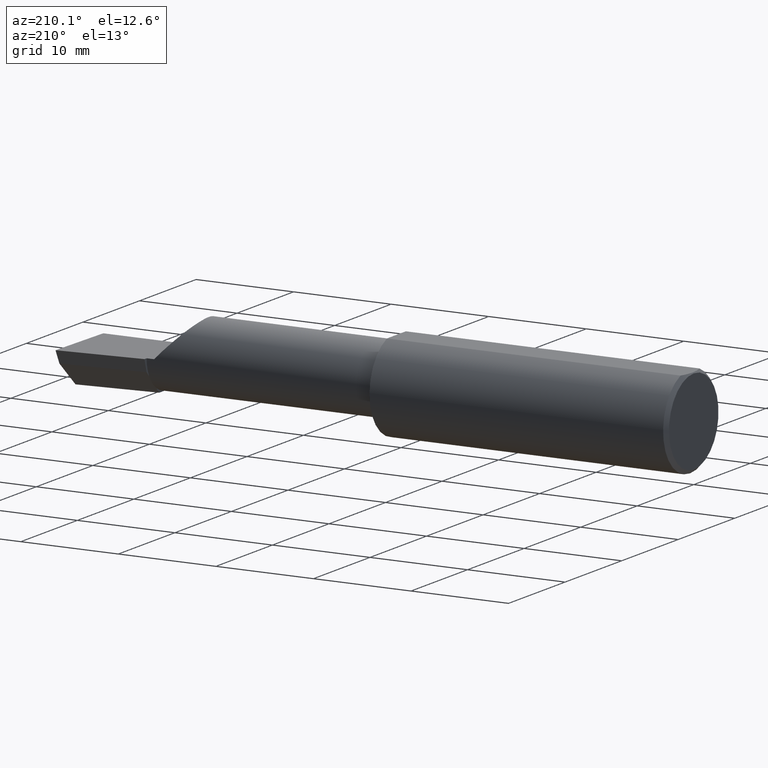
[diagram: clean part render]
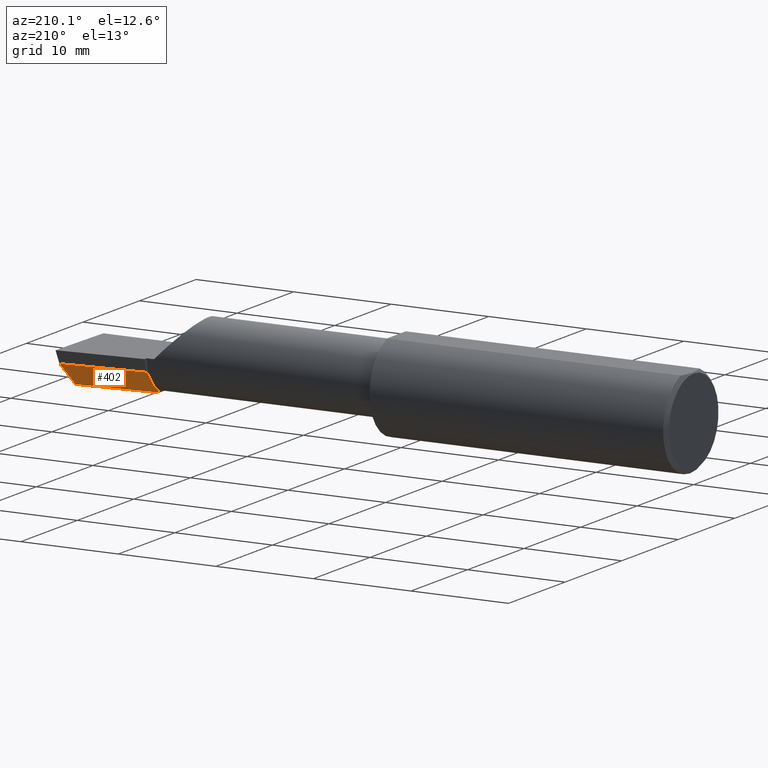
[diagram: same view with one face highlighted and labeled with its STEP entity id]
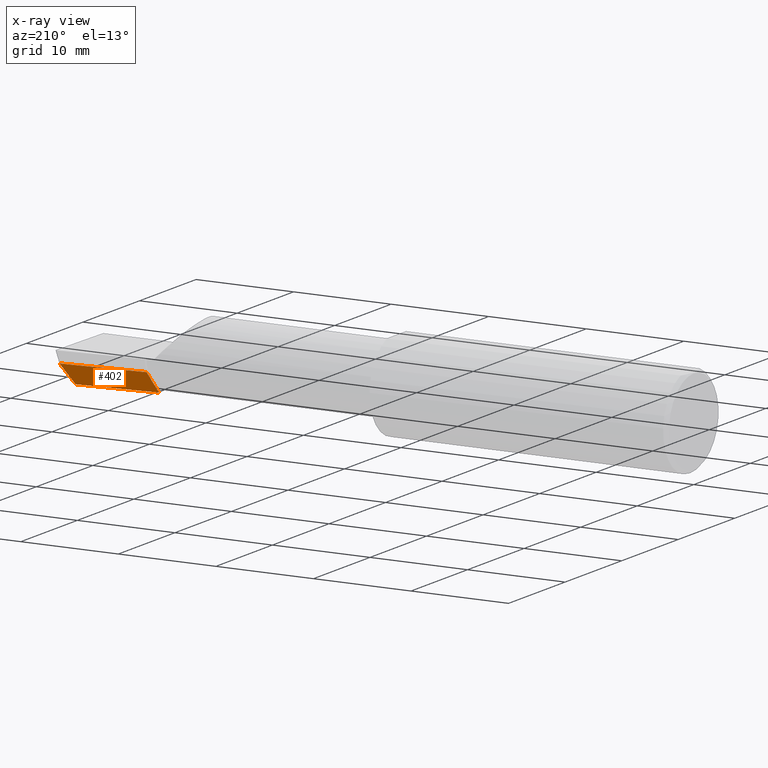
[diagram: x-ray of the same camera — body ghosted, the highlighted face saturated]
A machine part, auxiliary view. The second image highlights one B-rep face of the part: STEP entity #402.
The next image is the same camera in x-ray: the body ghosted, the highlighted face saturated — about 0% of this face is hidden behind the body in this view.
In plain terms, the highlighted planar face has unit normal (-0.0689, 0.716, -0.6947).
Its self-contained STEP definition (entity closure, byte-faithful):
#14 = DIRECTION ( 'NONE',  ( -0.9953961983671800740, -0.09584575252021031166, 0.000000000000000000 ) ) ;
#20 = FACE_OUTER_BOUND ( 'NONE', #145, .T. ) ;
#34 = DIRECTION ( 'NONE',  ( 4.755568962650853567E-18, -0.6963153109074925462, -0.7177360153954948085 ) ) ;
#42 = VERTEX_POINT ( 'NONE', #310 ) ;
#67 = AXIS2_PLACEMENT_3D ( 'NONE', #494, #155, #309 ) ;
#70 = EDGE_CURVE ( 'NONE', #342, #364, #505, .T. ) ;
#75 = LINE ( 'NONE', #114, #120 ) ;
#76 = VECTOR ( 'NONE', #319, 39.37007874015748854 ) ;
#109 = CARTESIAN_POINT ( 'NONE',  ( 2.493766568580444432, 0.1168246249203733628, -0.04780233936830585728 ) ) ;
#114 = CARTESIAN_POINT ( 'NONE',  ( 2.160000000000000142, 0.06382066673065307782, -0.06931012851386068874 ) ) ;
#118 = CARTESIAN_POINT ( 'NONE',  ( 2.160000000000000142, 0.06382066673065307782, -0.06931012851386068874 ) ) ;
#120 = VECTOR ( 'NONE', #418, 39.37007874015748143 ) ;
#130 = CARTESIAN_POINT ( 'NONE',  ( 2.160000000000000142, 0.01441505128072288582, -0.1202356058309980713 ) ) ;
#145 = EDGE_LOOP ( 'NONE', ( #574, #379, #326, #189, #361, #526 ) ) ;
#150 = CARTESIAN_POINT ( 'NONE',  ( 2.160000000000000142, 0.08255448787293394319, -0.04999999999999999584 ) ) ;
#155 = DIRECTION ( 'NONE',  ( -0.06894566448119619773, 0.7160281025913034503, -0.6946583704589934793 ) ) ;
#189 = ORIENTED_EDGE ( 'NONE', *, *, #545, .F. ) ;
#201 = DIRECTION ( 'NONE',  ( 0.1053106618240634978, 0.6976485211320199165, 0.7086580314005359593 ) ) ;
#230 = VECTOR ( 'NONE', #521, 39.37007874015748143 ) ;
#237 = VERTEX_POINT ( 'NONE', #130 ) ;
#274 = LINE ( 'NONE', #118, #446 ) ;
#309 = DIRECTION ( 'NONE',  ( 0.000000000000000000, 0.6963153109074925462, 0.7177360153954946975 ) ) ;
#310 = CARTESIAN_POINT ( 'NONE',  ( 2.493439983562941720, 0.1146611065212078395, -0.04999999999999999584 ) ) ;
#315 = CARTESIAN_POINT ( 'NONE',  ( 2.160000000000000142, 0.06382066673065307782, -0.06931012851386068874 ) ) ;
#319 = DIRECTION ( 'NONE',  ( -0.9953961983671800740, -0.09584575252021028391, -1.093478026937437971E-17 ) ) ;
#326 = ORIENTED_EDGE ( 'NONE', *, *, #484, .F. ) ;
#342 = VERTEX_POINT ( 'NONE', #544 ) ;
#358 = EDGE_CURVE ( 'NONE', #342, #42, #454, .T. ) ;
#359 = LINE ( 'NONE', #496, #386 ) ;
#361 = ORIENTED_EDGE ( 'NONE', *, *, #474, .F. ) ;
#362 = LINE ( 'NONE', #315, #230 ) ;
#364 = VERTEX_POINT ( 'NONE', #448 ) ;
#369 = CARTESIAN_POINT ( 'NONE',  ( 2.160000000000000142, 0.06495571228477951820, -0.06814016562413281741 ) ) ;
#379 = ORIENTED_EDGE ( 'NONE', *, *, #70, .T. ) ;
#383 = VERTEX_POINT ( 'NONE', #150 ) ;
#386 = VECTOR ( 'NONE', #14, 39.37007874015748854 ) ;
#398 = EDGE_CURVE ( 'NONE', #42, #383, #359, .T. ) ;
#402 = ADVANCED_FACE ( 'NONE', ( #20 ), #596, .T. ) ;
#418 = DIRECTION ( 'NONE',  ( 4.755568962650853567E-18, -0.6963153109074925462, -0.7177360153954948085 ) ) ;
#435 = VECTOR ( 'NONE', #201, 39.37007874015748854 ) ;
#446 = VECTOR ( 'NONE', #34, 39.37007874015748143 ) ;
#448 = CARTESIAN_POINT ( 'NONE',  ( 2.160000000000000142, -0.004807985797372735411, -0.1400500000000000633 ) ) ;
#454 = LINE ( 'NONE', #109, #435 ) ;
#474 = EDGE_CURVE ( 'NONE', #383, #618, #362, .T. ) ;
#484 = EDGE_CURVE ( 'NONE', #237, #364, #75, .T. ) ;
#494 = CARTESIAN_POINT ( 'NONE',  ( 2.511419111345318811, 0.1163922996227946677, -0.04999999999999999584 ) ) ;
#496 = CARTESIAN_POINT ( 'NONE',  ( 2.511419111345318811, 0.1163922996227946677, -0.04999999999999999584 ) ) ;
#505 = LINE ( 'NONE', #607, #76 ) ;
#521 = DIRECTION ( 'NONE',  ( 4.755568962650853567E-18, -0.6963153109074925462, -0.7177360153954948085 ) ) ;
#526 = ORIENTED_EDGE ( 'NONE', *, *, #398, .F. ) ;
#544 = CARTESIAN_POINT ( 'NONE',  ( 2.480058035321255794, 0.02601009779168069955, -0.1400500000000000633 ) ) ;
#545 = EDGE_CURVE ( 'NONE', #618, #237, #274, .T. ) ;
#574 = ORIENTED_EDGE ( 'NONE', *, *, #358, .F. ) ;
#596 = PLANE ( 'NONE',  #67 ) ;
#607 = CARTESIAN_POINT ( 'NONE',  ( 2.491859106488688358, 0.02714641170210404381, -0.1400500000000000633 ) ) ;
#618 = VERTEX_POINT ( 'NONE', #369 ) ;